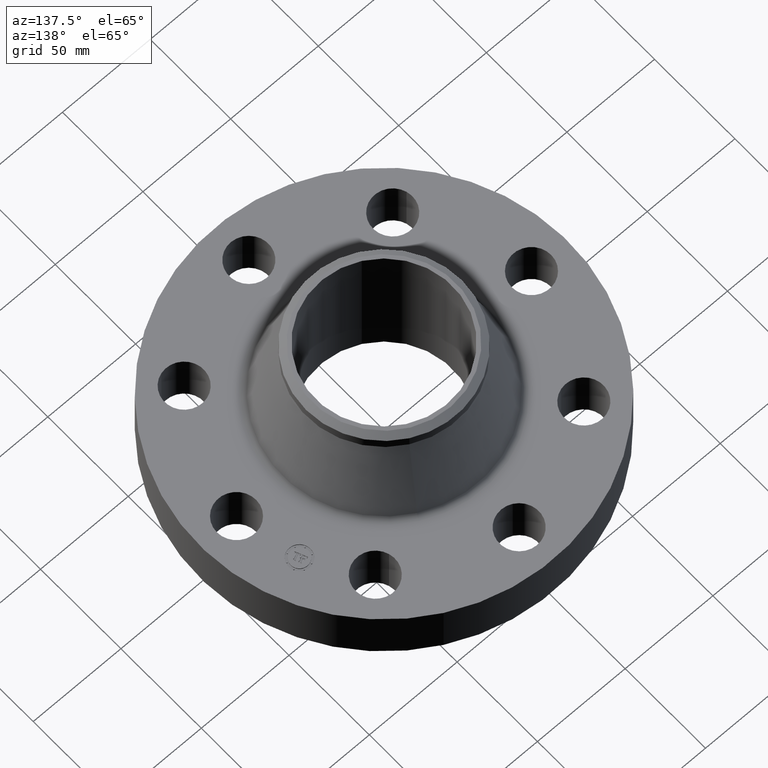
[diagram: clean part render]
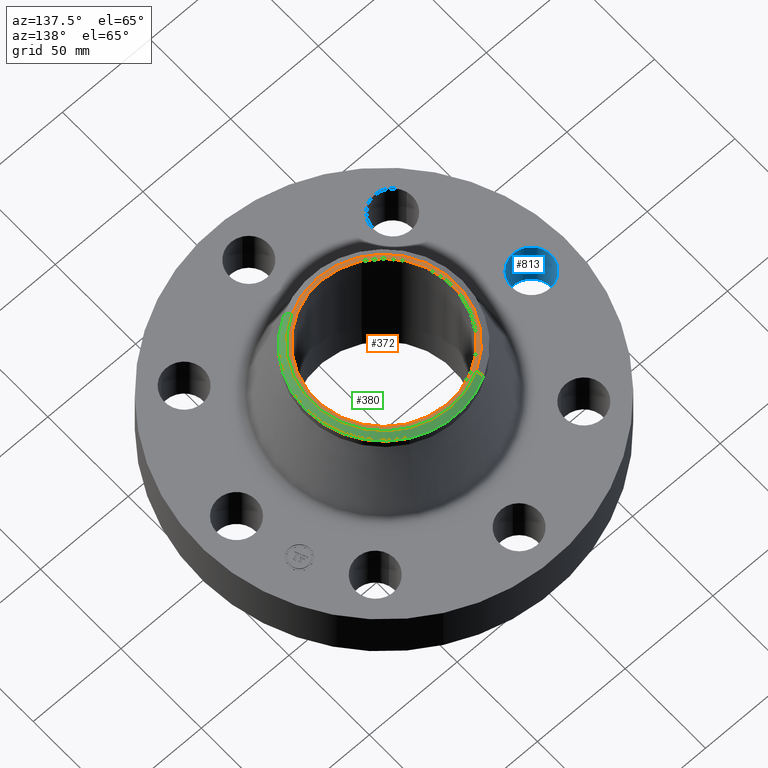
[diagram: same view with three faces highlighted in distinct colors, each labeled with its STEP entity id]
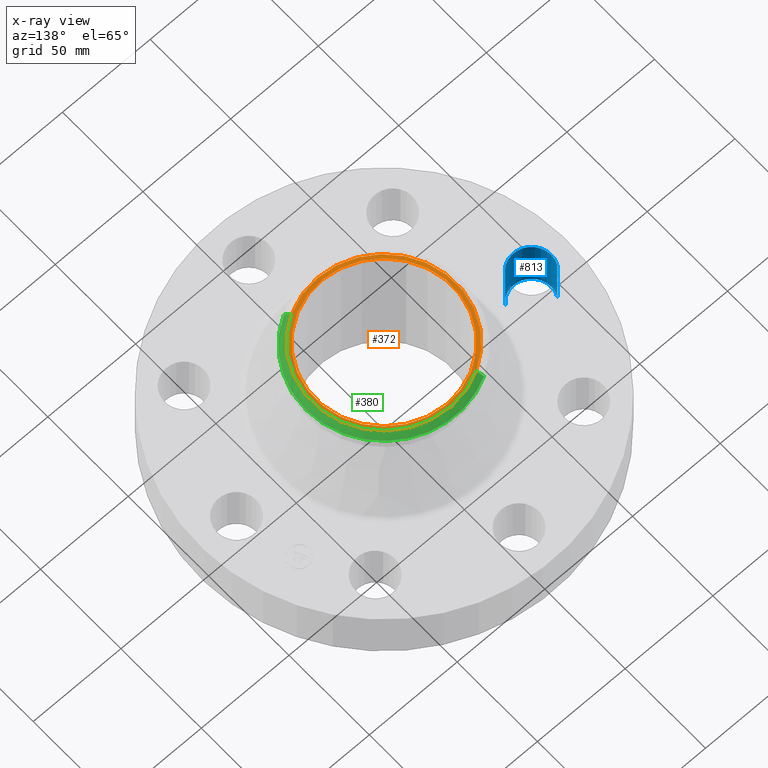
[diagram: x-ray of the same camera — body ghosted, the three highlighted faces saturated]
A machine part, auxiliary view with three faces highlighted in distinct colors.
The next image is the same camera in x-ray (body ghosted, the three faces saturated) — at least one of them is partly hidden behind the body in this view.
Their STEP definitions:

[orange] entity #372 — the highlighted planar face has unit normal (0, 0, -1).
#322=AXIS2_PLACEMENT_3D('Circle Axis2P3D',#320,#321,$) ;
#343=AXIS2_PLACEMENT_3D('Plane Axis2P3D',#340,#341,#342) ;
#347=AXIS2_PLACEMENT_3D('Circle Axis2P3D',#345,#346,$) ;
#356=AXIS2_PLACEMENT_3D('Circle Axis2P3D',#354,#355,$) ;
#365=AXIS2_PLACEMENT_3D('Circle Axis2P3D',#363,#364,$) ;
#317=CARTESIAN_POINT('Vertex',(0.773188818632,-1.41531263907,3.25000000001)) ;
#320=CARTESIAN_POINT('Axis2P3D Location',(0.,0.,3.25000000001)) ;
#324=CARTESIAN_POINT('Vertex',(-0.773188818632,1.41531263907,3.25000000001)) ;
#340=CARTESIAN_POINT('Axis2P3D Location',(0.,1.75000000001,3.25000000001)) ;
#345=CARTESIAN_POINT('Axis2P3D Location',(0.,0.,3.25000000001)) ;
#354=CARTESIAN_POINT('Axis2P3D Location',(0.,0.,3.25000000001)) ;
#358=CARTESIAN_POINT('Vertex',(-0.735438776222,-1.34621164995,3.25000000001)) ;
#360=CARTESIAN_POINT('Vertex',(0.735438776222,1.34621164995,3.25000000001)) ;
#363=CARTESIAN_POINT('Axis2P3D Location',(0.,0.,3.25000000001)) ;
#321=DIRECTION('Axis2P3D Direction',(0.,0.,-0.0393700787402)) ;
#341=DIRECTION('Axis2P3D Direction',(0.,0.,-0.0393700787402)) ;
#342=DIRECTION('Axis2P3D XDirection',(0.0393700787402,0.,0.)) ;
#346=DIRECTION('Axis2P3D Direction',(0.,0.,-0.0393700787402)) ;
#355=DIRECTION('Axis2P3D Direction',(0.,0.,-0.0393700787402)) ;
#364=DIRECTION('Axis2P3D Direction',(0.,0.,-0.0393700787402)) ;
#351=ORIENTED_EDGE('',*,*,#349,.T.) ;
#352=ORIENTED_EDGE('',*,*,#326,.T.) ;
#369=ORIENTED_EDGE('',*,*,#362,.T.) ;
#370=ORIENTED_EDGE('',*,*,#367,.T.) ;
#371=FACE_BOUND('',#368,.T.) ;
#372=ADVANCED_FACE('PartBody',(#353,#371),#344,.F.) ;
#323=CIRCLE('generated circle',#322,1.61274015749) ;
#348=CIRCLE('generated circle',#347,1.61274015749) ;
#357=CIRCLE('generated circle',#356,1.53400000001) ;
#366=CIRCLE('generated circle',#365,1.53400000001) ;
#326=EDGE_CURVE('',#325,#318,#323,.F.) ;
#349=EDGE_CURVE('',#318,#325,#348,.F.) ;
#362=EDGE_CURVE('',#359,#361,#357,.T.) ;
#367=EDGE_CURVE('',#361,#359,#366,.T.) ;
#350=EDGE_LOOP('',(#351,#352)) ;
#368=EDGE_LOOP('',(#369,#370)) ;
#353=FACE_OUTER_BOUND('',#350,.T.) ;
#344=PLANE('',#343) ;
#318=VERTEX_POINT('',#317) ;
#325=VERTEX_POINT('',#324) ;
#359=VERTEX_POINT('',#358) ;
#361=VERTEX_POINT('',#360) ;

[blue] entity #813 — the highlighted cylindrical surface (edge-blend (fillet) strip) has radius 11.176 mm, axis along (-0, 0, -1).
#497=AXIS2_PLACEMENT_3D('Circle Axis2P3D',#495,#496,$) ;
#786=AXIS2_PLACEMENT_3D('Cylinder Axis2P3D',#783,#784,#785) ;
#804=AXIS2_PLACEMENT_3D('Circle Axis2P3D',#802,#803,$) ;
#495=CARTESIAN_POINT('Axis2P3D Location',(-3.31000000001,-8.39223703654E-016,0.)) ;
#499=CARTESIAN_POINT('Vertex',(-2.92386367278,-0.210947236987,0.)) ;
#501=CARTESIAN_POINT('Vertex',(-3.69613632725,0.210947236987,0.)) ;
#783=CARTESIAN_POINT('Axis2P3D Location',(-3.31000000001,-4.05358090519E-016,1.24606299213)) ;
#788=CARTESIAN_POINT('Line Origine',(-2.92386367278,-0.210947236987,0.625000000003)) ;
#792=CARTESIAN_POINT('Vertex',(-2.92386367278,-0.210947236987,1.25000000001)) ;
#795=CARTESIAN_POINT('Line Origine',(-3.69613632725,0.210947236987,0.625000000003)) ;
#799=CARTESIAN_POINT('Vertex',(-3.69613632725,0.210947236987,1.25000000001)) ;
#802=CARTESIAN_POINT('Axis2P3D Location',(-3.31000000001,-4.05358090519E-016,1.25000000001)) ;
#496=DIRECTION('Axis2P3D Direction',(0.,0.,-0.0393700787402)) ;
#784=DIRECTION('Axis2P3D Direction',(-0.,0.,-0.0393700787402)) ;
#785=DIRECTION('Axis2P3D XDirection',(-0.0345504945626,0.0188750212049,0.)) ;
#789=DIRECTION('Vector Direction',(0.,0.,-0.0393700787402)) ;
#796=DIRECTION('Vector Direction',(0.,0.,-0.0393700787402)) ;
#803=DIRECTION('Axis2P3D Direction',(-0.,0.,-0.0393700787402)) ;
#790=VECTOR('Line Direction',#789,0.0393700787402) ;
#797=VECTOR('Line Direction',#796,0.0393700787402) ;
#808=ORIENTED_EDGE('',*,*,#794,.F.) ;
#809=ORIENTED_EDGE('',*,*,#503,.T.) ;
#810=ORIENTED_EDGE('',*,*,#801,.T.) ;
#811=ORIENTED_EDGE('',*,*,#806,.F.) ;
#813=ADVANCED_FACE('PartBody',(#812),#787,.F.) ;
#498=CIRCLE('generated circle',#497,0.440000000002) ;
#805=CIRCLE('generated circle',#804,0.440000000002) ;
#787=CYLINDRICAL_SURFACE('generated cylinder',#786,0.440000000002) ;
#503=EDGE_CURVE('',#500,#502,#498,.T.) ;
#794=EDGE_CURVE('',#500,#793,#791,.F.) ;
#801=EDGE_CURVE('',#502,#800,#798,.F.) ;
#806=EDGE_CURVE('',#793,#800,#805,.T.) ;
#807=EDGE_LOOP('',(#808,#809,#810,#811)) ;
#812=FACE_OUTER_BOUND('',#807,.T.) ;
#791=LINE('Line',#788,#790) ;
#798=LINE('Line',#795,#797) ;
#500=VERTEX_POINT('',#499) ;
#502=VERTEX_POINT('',#501) ;
#793=VERTEX_POINT('',#792) ;
#800=VERTEX_POINT('',#799) ;

[green] entity #380 — the highlighted conical surface has half-angle 52.5 deg.
#270=AXIS2_PLACEMENT_3D('Circle Axis2P3D',#268,#269,$) ;
#297=AXIS2_PLACEMENT_3D('Circle Axis2P3D',#295,#296,$) ;
#311=AXIS2_PLACEMENT_3D('Cone Axis2P3D',#308,#309,#310) ;
#347=AXIS2_PLACEMENT_3D('Circle Axis2P3D',#345,#346,$) ;
#265=CARTESIAN_POINT('Vertex',(0.838994692561,1.53576948331,3.14467681848)) ;
#268=CARTESIAN_POINT('Axis2P3D Location',(0.,0.,3.14467681848)) ;
#272=CARTESIAN_POINT('Vertex',(0.838994692561,-1.53576948331,3.14467681848)) ;
#292=CARTESIAN_POINT('Vertex',(-0.838994692561,1.53576948331,3.14467681848)) ;
#295=CARTESIAN_POINT('Axis2P3D Location',(0.,0.,3.14467681848)) ;
#308=CARTESIAN_POINT('Axis2P3D Location',(0.,0.,3.25000000001)) ;
#313=CARTESIAN_POINT('Line Origine',(0.806091755596,-1.47554106119,3.19733840925)) ;
#317=CARTESIAN_POINT('Vertex',(0.773188818632,-1.41531263907,3.25000000001)) ;
#324=CARTESIAN_POINT('Vertex',(-0.773188818632,1.41531263907,3.25000000001)) ;
#327=CARTESIAN_POINT('Line Origine',(-0.806091755596,1.47554106119,3.19733840925)) ;
#345=CARTESIAN_POINT('Axis2P3D Location',(0.,0.,3.25000000001)) ;
#269=DIRECTION('Axis2P3D Direction',(0.,0.,-0.0393700787402)) ;
#296=DIRECTION('Axis2P3D Direction',(0.,0.,-0.0393700787402)) ;
#309=DIRECTION('Axis2P3D Direction',(-0.,-0.,-0.0393700787402)) ;
#310=DIRECTION('Axis2P3D XDirection',(-0.0188750212049,0.0345504945626,0.)) ;
#314=DIRECTION('Vector Direction',(0.014974561121,-0.02741075027,-0.023966985394)) ;
#328=DIRECTION('Vector Direction',(-0.014974561121,0.02741075027,-0.023966985394)) ;
#346=DIRECTION('Axis2P3D Direction',(0.,0.,-0.0393700787402)) ;
#315=VECTOR('Line Direction',#314,0.0393700787402) ;
#329=VECTOR('Line Direction',#328,0.0393700787402) ;
#374=ORIENTED_EDGE('',*,*,#331,.F.) ;
#375=ORIENTED_EDGE('',*,*,#349,.F.) ;
#376=ORIENTED_EDGE('',*,*,#319,.T.) ;
#377=ORIENTED_EDGE('',*,*,#274,.T.) ;
#378=ORIENTED_EDGE('',*,*,#299,.F.) ;
#380=ADVANCED_FACE('PartBody',(#379),#312,.T.) ;
#271=CIRCLE('generated circle',#270,1.75000000001) ;
#298=CIRCLE('generated circle',#297,1.75000000001) ;
#348=CIRCLE('generated circle',#347,1.61274015749) ;
#312=CONICAL_SURFACE('Cone',#311,1.61274015749,0.916297857297) ;
#274=EDGE_CURVE('',#273,#266,#271,.F.) ;
#299=EDGE_CURVE('',#293,#266,#298,.T.) ;
#319=EDGE_CURVE('',#318,#273,#316,.T.) ;
#331=EDGE_CURVE('',#325,#293,#330,.T.) ;
#349=EDGE_CURVE('',#318,#325,#348,.F.) ;
#373=EDGE_LOOP('',(#374,#375,#376,#377,#378)) ;
#379=FACE_OUTER_BOUND('',#373,.T.) ;
#316=LINE('Line',#313,#315) ;
#330=LINE('Line',#327,#329) ;
#266=VERTEX_POINT('',#265) ;
#273=VERTEX_POINT('',#272) ;
#293=VERTEX_POINT('',#292) ;
#318=VERTEX_POINT('',#317) ;
#325=VERTEX_POINT('',#324) ;